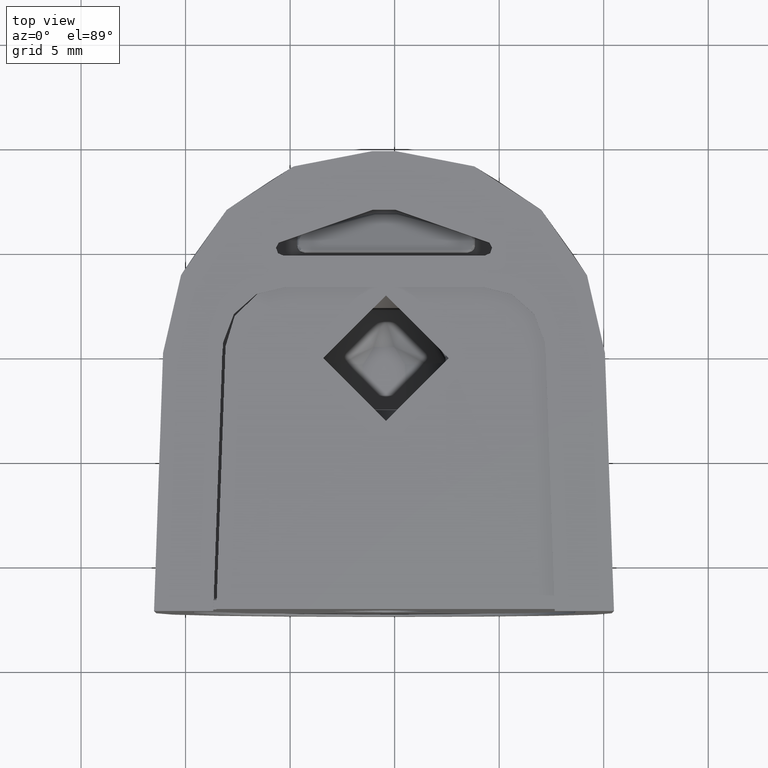
[diagram: clean part render]
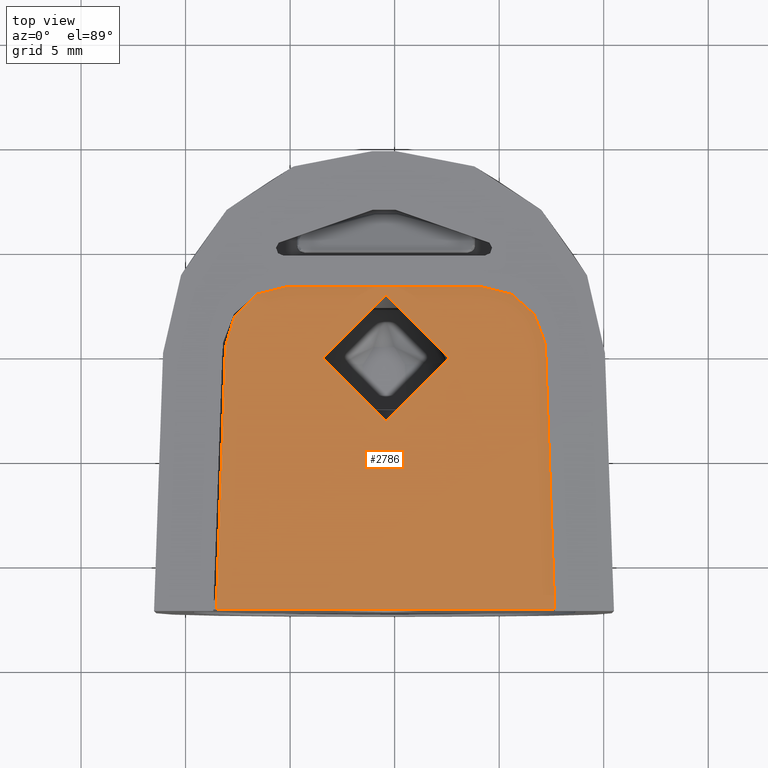
[diagram: same view with one face highlighted and labeled with its STEP entity id]
A machine part, top view. The second image highlights one B-rep face of the part: STEP entity #2786.
In plain terms, the highlighted planar face has unit normal (0, 0, 1).
Its self-contained STEP definition (entity closure, byte-faithful):
#75=FACE_BOUND('',#599,.T.);
#222=CIRCLE('',#3043,3.);
#223=CIRCLE('',#3044,3.);
#224=CIRCLE('',#3045,3.);
#429=FACE_OUTER_BOUND('',#598,.T.);
#598=EDGE_LOOP('',(#2345,#2346,#2347,#2348,#2349,#2350));
#599=EDGE_LOOP('',(#2351));
#820=LINE('',#4936,#1032);
#833=LINE('',#4994,#1045);
#834=LINE('',#4999,#1046);
#835=LINE('',#5002,#1047);
#1032=VECTOR('',#3643,16.23313825865);
#1045=VECTOR('',#3678,12.5623694046825);
#1046=VECTOR('',#3683,9.359820265188);
#1047=VECTOR('',#3686,12.5623694046825);
#1288=VERTEX_POINT('',#4933);
#1289=VERTEX_POINT('',#4935);
#1309=VERTEX_POINT('',#4992);
#1310=VERTEX_POINT('',#4996);
#1311=VERTEX_POINT('',#4998);
#1312=VERTEX_POINT('',#5000);
#1313=VERTEX_POINT('',#5003);
#1645=EDGE_CURVE('',#1289,#1288,#820,.T.);
#1669=EDGE_CURVE('',#1288,#1309,#833,.T.);
#1670=EDGE_CURVE('',#1309,#1310,#222,.T.);
#1671=EDGE_CURVE('',#1310,#1311,#834,.T.);
#1672=EDGE_CURVE('',#1311,#1312,#223,.T.);
#1673=EDGE_CURVE('',#1312,#1289,#835,.T.);
#1674=EDGE_CURVE('',#1313,#1313,#224,.T.);
#2345=ORIENTED_EDGE('',*,*,#1645,.T.);
#2346=ORIENTED_EDGE('',*,*,#1669,.T.);
#2347=ORIENTED_EDGE('',*,*,#1670,.T.);
#2348=ORIENTED_EDGE('',*,*,#1671,.T.);
#2349=ORIENTED_EDGE('',*,*,#1672,.T.);
#2350=ORIENTED_EDGE('',*,*,#1673,.T.);
#2351=ORIENTED_EDGE('',*,*,#1674,.T.);
#2668=PLANE('',#3042);
#2786=ADVANCED_FACE('',(#429,#75),#2668,.T.);
#3042=AXIS2_PLACEMENT_3D('',#4995,#3679,#3680);
#3043=AXIS2_PLACEMENT_3D('',#4997,#3681,#3682);
#3044=AXIS2_PLACEMENT_3D('',#5001,#3684,#3685);
#3045=AXIS2_PLACEMENT_3D('',#5004,#3687,#3688);
#3643=DIRECTION('',(1.,0.,0.));
#3678=DIRECTION('',(-0.0349048063981306,0.999390641586316,0.));
#3679=DIRECTION('center_axis',(0.,0.,1.));
#3680=DIRECTION('ref_axis',(-1.,0.,0.));
#3681=DIRECTION('center_axis',(0.,0.,1.));
#3682=DIRECTION('ref_axis',(0.999390641586316,0.0349048063981306,0.));
#3683=DIRECTION('',(-1.,0.,0.));
#3684=DIRECTION('center_axis',(0.,0.,1.));
#3685=DIRECTION('ref_axis',(0.,1.,0.));
#3686=DIRECTION('',(-0.0349048063981306,-0.999390641586316,0.));
#3687=DIRECTION('center_axis',(0.,0.,-1.));
#3688=DIRECTION('ref_axis',(-1.,0.,0.));
#4933=CARTESIAN_POINT('',(8.116569129325,0.,0.));
#4935=CARTESIAN_POINT('',(-8.116569129325,0.,0.));
#4936=CARTESIAN_POINT('',(-8.116569129325,0.,0.));
#4992=CARTESIAN_POINT('',(7.678082057353,12.55471441919,0.));
#4994=CARTESIAN_POINT('',(8.116569129325,0.,0.));
#4995=CARTESIAN_POINT('Origin',(0.,0.,0.));
#4996=CARTESIAN_POINT('',(4.679910132594,15.45,0.));
#4997=CARTESIAN_POINT('Origin',(4.679910132594,12.45,0.));
#4998=CARTESIAN_POINT('',(-4.679910132594,15.45,0.));
#4999=CARTESIAN_POINT('',(4.679910132594,15.45,0.));
#5000=CARTESIAN_POINT('',(-7.678082057353,12.55471441919,0.));
#5001=CARTESIAN_POINT('Origin',(-4.679910132594,12.45,0.));
#5002=CARTESIAN_POINT('',(-7.678082057353,12.55471441919,0.));
#5003=CARTESIAN_POINT('',(-3.,12.,0.));
#5004=CARTESIAN_POINT('Origin',(0.,12.,0.));